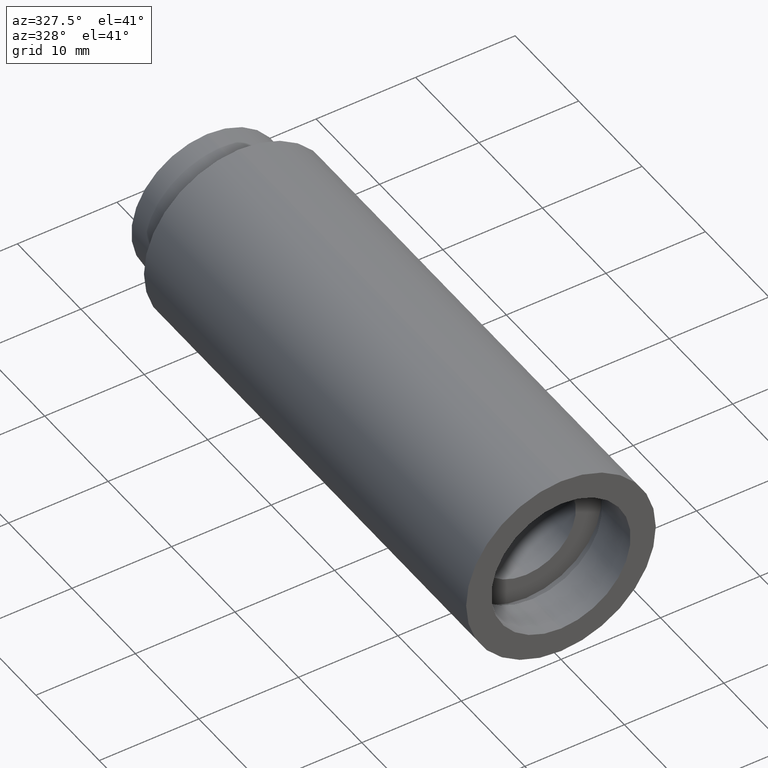
[diagram: clean part render]
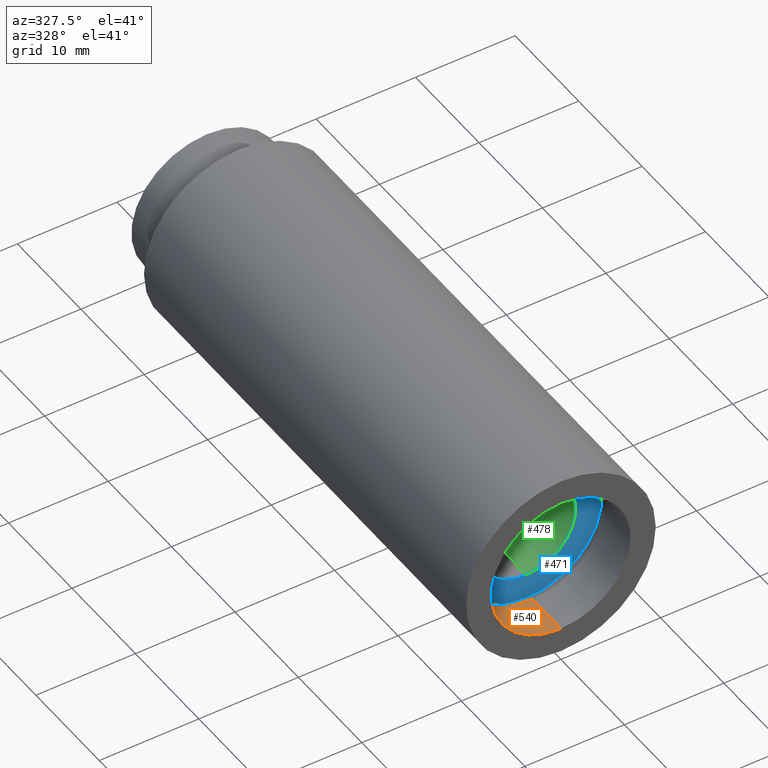
[diagram: same view with three faces highlighted in distinct colors, each labeled with its STEP entity id]
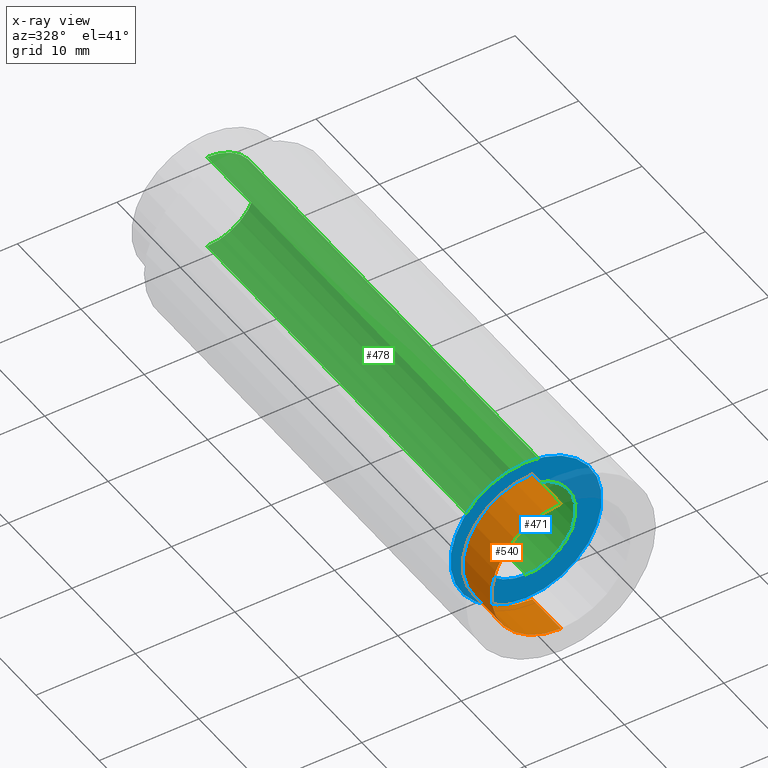
[diagram: x-ray of the same camera — body ghosted, the three highlighted faces saturated]
A machine part, auxiliary view with three faces highlighted in distinct colors.
The next image is the same camera in x-ray (body ghosted, the three faces saturated) — at least one of them is partly hidden behind the body in this view.
Their STEP definitions:

[orange] entity #540 — the highlighted cylindrical surface (partial cylindrical patch) has radius 7 mm, axis along (-0, 1, -0).
#13 = DIRECTION ( 'NONE',  ( 0.0000000000000000000, 0.0000000000000000000, 1.000000000000000000 ) ) ;
#24 = CARTESIAN_POINT ( 'NONE',  ( 8.572527594031495900E-016, -2.775557561562891400E-014, -7.000000000000019500 ) ) ;
#30 = ORIENTED_EDGE ( 'NONE', *, *, #58, .T. ) ;
#43 = FACE_OUTER_BOUND ( 'NONE', #537, .T. ) ;
#54 = DIRECTION ( 'NONE',  ( 0.0000000000000000000, 0.0000000000000000000, 1.000000000000000000 ) ) ;
#58 = EDGE_CURVE ( 'NONE', #349, #542, #600, .T. ) ;
#71 = VERTEX_POINT ( 'NONE', #353 ) ;
#105 = CARTESIAN_POINT ( 'NONE',  ( 0.0000000000000000000, 4.499999999999976000, 7.000000000000020400 ) ) ;
#113 = CARTESIAN_POINT ( 'NONE',  ( 0.0000000000000000000, 161.3761669434274500, 0.0000000000000000000 ) ) ;
#123 = VECTOR ( 'NONE', #513, 1000.000000000000000 ) ;
#125 = CARTESIAN_POINT ( 'NONE',  ( 8.572527594031496900E-016, 161.3761669434274500, -7.000000000000020400 ) ) ;
#139 = EDGE_CURVE ( 'NONE', #608, #349, #447, .T. ) ;
#210 = AXIS2_PLACEMENT_3D ( 'NONE', #113, #245, #54 ) ;
#241 = CYLINDRICAL_SURFACE ( 'NONE', #210, 7.000000000000020400 ) ;
#245 = DIRECTION ( 'NONE',  ( -0.0000000000000000000, 1.000000000000000000, -0.0000000000000000000 ) ) ;
#259 = DIRECTION ( 'NONE',  ( 0.0000000000000000000, 0.0000000000000000000, 1.000000000000000000 ) ) ;
#268 = DIRECTION ( 'NONE',  ( -0.0000000000000000000, 1.000000000000000000, -0.0000000000000000000 ) ) ;
#289 = DIRECTION ( 'NONE',  ( -0.0000000000000000000, 1.000000000000000000, -0.0000000000000000000 ) ) ;
#332 = ORIENTED_EDGE ( 'NONE', *, *, #139, .T. ) ;
#334 = CARTESIAN_POINT ( 'NONE',  ( 0.0000000000000000000, 161.3761669434274500, 7.000000000000020400 ) ) ;
#349 = VERTEX_POINT ( 'NONE', #583 ) ;
#353 = CARTESIAN_POINT ( 'NONE',  ( 0.0000000000000000000, -2.775557561562891400E-014, 7.000000000000019500 ) ) ;
#391 = DIRECTION ( 'NONE',  ( -0.0000000000000000000, 1.000000000000000000, -0.0000000000000000000 ) ) ;
#395 = ORIENTED_EDGE ( 'NONE', *, *, #442, .F. ) ;
#434 = VECTOR ( 'NONE', #268, 1000.000000000000000 ) ;
#441 = ORIENTED_EDGE ( 'NONE', *, *, #582, .F. ) ;
#442 = EDGE_CURVE ( 'NONE', #71, #542, #544, .T. ) ;
#443 = AXIS2_PLACEMENT_3D ( 'NONE', #518, #289, #13 ) ;
#446 = CIRCLE ( 'NONE', #443, 7.000000000000019500 ) ;
#447 = LINE ( 'NONE', #125, #434 ) ;
#480 = AXIS2_PLACEMENT_3D ( 'NONE', #488, #391, #259 ) ;
#488 = CARTESIAN_POINT ( 'NONE',  ( 0.0000000000000000000, 4.499999999999976000, 0.0000000000000000000 ) ) ;
#513 = DIRECTION ( 'NONE',  ( -0.0000000000000000000, 1.000000000000000000, -0.0000000000000000000 ) ) ;
#518 = CARTESIAN_POINT ( 'NONE',  ( 0.0000000000000000000, -2.775557561562891400E-014, 0.0000000000000000000 ) ) ;
#537 = EDGE_LOOP ( 'NONE', ( #441, #332, #30, #395 ) ) ;
#540 = ADVANCED_FACE ( 'NONE', ( #43 ), #241, .F. ) ;
#542 = VERTEX_POINT ( 'NONE', #105 ) ;
#544 = LINE ( 'NONE', #334, #123 ) ;
#582 = EDGE_CURVE ( 'NONE', #608, #71, #446, .T. ) ;
#583 = CARTESIAN_POINT ( 'NONE',  ( 8.572527594031496900E-016, 4.499999999999976000, -7.000000000000020400 ) ) ;
#600 = CIRCLE ( 'NONE', #480, 7.000000000000020400 ) ;
#608 = VERTEX_POINT ( 'NONE', #24 ) ;

[blue] entity #471 — the highlighted planar face has unit normal (-0, 1, 0).
#1 = DIRECTION ( 'NONE',  ( -0.0000000000000000000, 1.000000000000000000, -0.0000000000000000000 ) ) ;
#14 = DIRECTION ( 'NONE',  ( 0.0000000000000000000, 0.0000000000000000000, 1.000000000000000000 ) ) ;
#41 = VERTEX_POINT ( 'NONE', #301 ) ;
#84 = CARTESIAN_POINT ( 'NONE',  ( 9.307315673519909100E-016, 5.499999999999976900, -7.600000000000020100 ) ) ;
#85 = FACE_OUTER_BOUND ( 'NONE', #95, .T. ) ;
#95 = EDGE_LOOP ( 'NONE', ( #107, #357 ) ) ;
#107 = ORIENTED_EDGE ( 'NONE', *, *, #412, .F. ) ;
#119 = AXIS2_PLACEMENT_3D ( 'NONE', #461, #1, #464 ) ;
#130 = VERTEX_POINT ( 'NONE', #319 ) ;
#137 = CIRCLE ( 'NONE', #440, 7.600000000000020100 ) ;
#145 = DIRECTION ( 'NONE',  ( 0.0000000000000000000, 0.0000000000000000000, 1.000000000000000000 ) ) ;
#149 = DIRECTION ( 'NONE',  ( -0.0000000000000000000, 1.000000000000000000, -0.0000000000000000000 ) ) ;
#153 = VERTEX_POINT ( 'NONE', #84 ) ;
#179 = FACE_BOUND ( 'NONE', #238, .T. ) ;
#183 = DIRECTION ( 'NONE',  ( -0.0000000000000000000, 1.000000000000000000, 0.0000000000000000000 ) ) ;
#219 = ORIENTED_EDGE ( 'NONE', *, *, #611, .T. ) ;
#221 = DIRECTION ( 'NONE',  ( 0.0000000000000000000, 0.0000000000000000000, 1.000000000000000000 ) ) ;
#234 = CARTESIAN_POINT ( 'NONE',  ( 7.600000000000020100, 5.499999999999984000, 0.0000000000000000000 ) ) ;
#238 = EDGE_LOOP ( 'NONE', ( #451, #219 ) ) ;
#301 = CARTESIAN_POINT ( 'NONE',  ( 0.0000000000000000000, 5.499999999999976900, 7.600000000000020100 ) ) ;
#305 = AXIS2_PLACEMENT_3D ( 'NONE', #336, #149, #14 ) ;
#319 = CARTESIAN_POINT ( 'NONE',  ( 0.0000000000000000000, 5.499999999999976900, 5.000000000000019500 ) ) ;
#323 = EDGE_CURVE ( 'NONE', #130, #415, #493, .T. ) ;
#327 = DIRECTION ( 'NONE',  ( 0.0000000000000000000, 0.0000000000000000000, 1.000000000000000000 ) ) ;
#336 = CARTESIAN_POINT ( 'NONE',  ( 0.0000000000000000000, 5.499999999999976900, 0.0000000000000000000 ) ) ;
#357 = ORIENTED_EDGE ( 'NONE', *, *, #419, .F. ) ;
#358 = DIRECTION ( 'NONE',  ( -0.0000000000000000000, 1.000000000000000000, -0.0000000000000000000 ) ) ;
#360 = AXIS2_PLACEMENT_3D ( 'NONE', #234, #183, #327 ) ;
#412 = EDGE_CURVE ( 'NONE', #41, #153, #137, .T. ) ;
#415 = VERTEX_POINT ( 'NONE', #502 ) ;
#419 = EDGE_CURVE ( 'NONE', #153, #41, #584, .T. ) ;
#440 = AXIS2_PLACEMENT_3D ( 'NONE', #506, #556, #145 ) ;
#451 = ORIENTED_EDGE ( 'NONE', *, *, #323, .T. ) ;
#461 = CARTESIAN_POINT ( 'NONE',  ( 0.0000000000000000000, 5.499999999999976900, 0.0000000000000000000 ) ) ;
#464 = DIRECTION ( 'NONE',  ( 0.0000000000000000000, 0.0000000000000000000, 1.000000000000000000 ) ) ;
#471 = ADVANCED_FACE ( 'NONE', ( #85, #179 ), #562, .F. ) ;
#493 = CIRCLE ( 'NONE', #305, 5.000000000000019500 ) ;
#497 = CIRCLE ( 'NONE', #588, 5.000000000000019500 ) ;
#502 = CARTESIAN_POINT ( 'NONE',  ( 6.123233995736789000E-016, 5.499999999999976900, -5.000000000000019500 ) ) ;
#506 = CARTESIAN_POINT ( 'NONE',  ( 0.0000000000000000000, 5.499999999999976900, 0.0000000000000000000 ) ) ;
#556 = DIRECTION ( 'NONE',  ( -0.0000000000000000000, 1.000000000000000000, -0.0000000000000000000 ) ) ;
#562 = PLANE ( 'NONE',  #360 ) ;
#584 = CIRCLE ( 'NONE', #119, 7.600000000000020100 ) ;
#588 = AXIS2_PLACEMENT_3D ( 'NONE', #604, #358, #221 ) ;
#604 = CARTESIAN_POINT ( 'NONE',  ( 0.0000000000000000000, 5.499999999999976900, 0.0000000000000000000 ) ) ;
#611 = EDGE_CURVE ( 'NONE', #415, #130, #497, .T. ) ;

[green] entity #478 — the highlighted cylindrical surface (partial cylindrical patch) has radius 5 mm, axis along (-0, 1, -0).
#14 = DIRECTION ( 'NONE',  ( 0.0000000000000000000, 0.0000000000000000000, 1.000000000000000000 ) ) ;
#34 = FACE_OUTER_BOUND ( 'NONE', #350, .T. ) ;
#38 = DIRECTION ( 'NONE',  ( -0.0000000000000000000, 1.000000000000000000, -0.0000000000000000000 ) ) ;
#46 = EDGE_CURVE ( 'NONE', #130, #438, #325, .T. ) ;
#88 = CYLINDRICAL_SURFACE ( 'NONE', #527, 5.000000000000019500 ) ;
#130 = VERTEX_POINT ( 'NONE', #319 ) ;
#149 = DIRECTION ( 'NONE',  ( -0.0000000000000000000, 1.000000000000000000, -0.0000000000000000000 ) ) ;
#212 = CARTESIAN_POINT ( 'NONE',  ( 0.0000000000000000000, 161.3761669434274500, 5.000000000000019500 ) ) ;
#213 = ORIENTED_EDGE ( 'NONE', *, *, #361, .T. ) ;
#270 = ORIENTED_EDGE ( 'NONE', *, *, #621, .F. ) ;
#280 = CARTESIAN_POINT ( 'NONE',  ( 0.0000000000000000000, 161.3761669434274500, 0.0000000000000000000 ) ) ;
#302 = DIRECTION ( 'NONE',  ( -0.0000000000000000000, 1.000000000000000000, -0.0000000000000000000 ) ) ;
#303 = DIRECTION ( 'NONE',  ( 0.0000000000000000000, 0.0000000000000000000, 1.000000000000000000 ) ) ;
#305 = AXIS2_PLACEMENT_3D ( 'NONE', #336, #149, #14 ) ;
#319 = CARTESIAN_POINT ( 'NONE',  ( 0.0000000000000000000, 5.499999999999976900, 5.000000000000019500 ) ) ;
#323 = EDGE_CURVE ( 'NONE', #130, #415, #493, .T. ) ;
#325 = LINE ( 'NONE', #212, #400 ) ;
#336 = CARTESIAN_POINT ( 'NONE',  ( 0.0000000000000000000, 5.499999999999976900, 0.0000000000000000000 ) ) ;
#350 = EDGE_LOOP ( 'NONE', ( #270, #404, #423, #213 ) ) ;
#355 = CARTESIAN_POINT ( 'NONE',  ( 6.123233995736789000E-016, 161.3761669434274500, -5.000000000000019500 ) ) ;
#361 = EDGE_CURVE ( 'NONE', #438, #572, #401, .T. ) ;
#380 = CARTESIAN_POINT ( 'NONE',  ( 6.123233995736789000E-016, 55.79999999999997600, -5.000000000000019500 ) ) ;
#400 = VECTOR ( 'NONE', #302, 1000.000000000000000 ) ;
#401 = CIRCLE ( 'NONE', #408, 5.000000000000019500 ) ;
#404 = ORIENTED_EDGE ( 'NONE', *, *, #323, .F. ) ;
#406 = LINE ( 'NONE', #355, #505 ) ;
#408 = AXIS2_PLACEMENT_3D ( 'NONE', #533, #591, #303 ) ;
#410 = DIRECTION ( 'NONE',  ( -0.0000000000000000000, 1.000000000000000000, -0.0000000000000000000 ) ) ;
#415 = VERTEX_POINT ( 'NONE', #502 ) ;
#423 = ORIENTED_EDGE ( 'NONE', *, *, #46, .T. ) ;
#438 = VERTEX_POINT ( 'NONE', #573 ) ;
#453 = DIRECTION ( 'NONE',  ( 0.0000000000000000000, 0.0000000000000000000, 1.000000000000000000 ) ) ;
#478 = ADVANCED_FACE ( 'NONE', ( #34 ), #88, .F. ) ;
#493 = CIRCLE ( 'NONE', #305, 5.000000000000019500 ) ;
#502 = CARTESIAN_POINT ( 'NONE',  ( 6.123233995736789000E-016, 5.499999999999976900, -5.000000000000019500 ) ) ;
#505 = VECTOR ( 'NONE', #38, 1000.000000000000000 ) ;
#527 = AXIS2_PLACEMENT_3D ( 'NONE', #280, #410, #453 ) ;
#533 = CARTESIAN_POINT ( 'NONE',  ( 0.0000000000000000000, 55.79999999999997600, 0.0000000000000000000 ) ) ;
#572 = VERTEX_POINT ( 'NONE', #380 ) ;
#573 = CARTESIAN_POINT ( 'NONE',  ( 0.0000000000000000000, 55.79999999999997600, 5.000000000000019500 ) ) ;
#591 = DIRECTION ( 'NONE',  ( -0.0000000000000000000, 1.000000000000000000, -0.0000000000000000000 ) ) ;
#621 = EDGE_CURVE ( 'NONE', #415, #572, #406, .T. ) ;